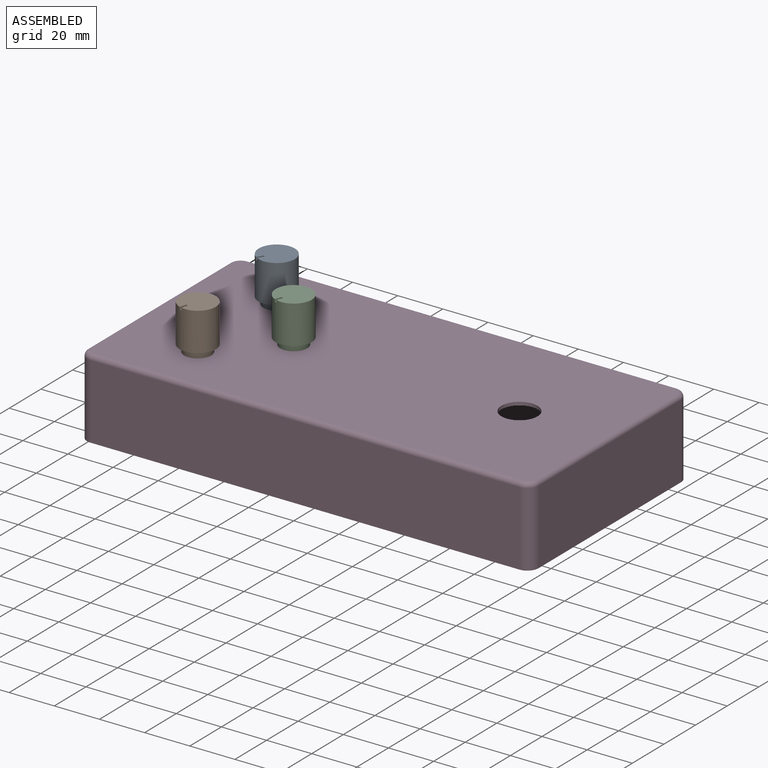
[diagram: assembled view]
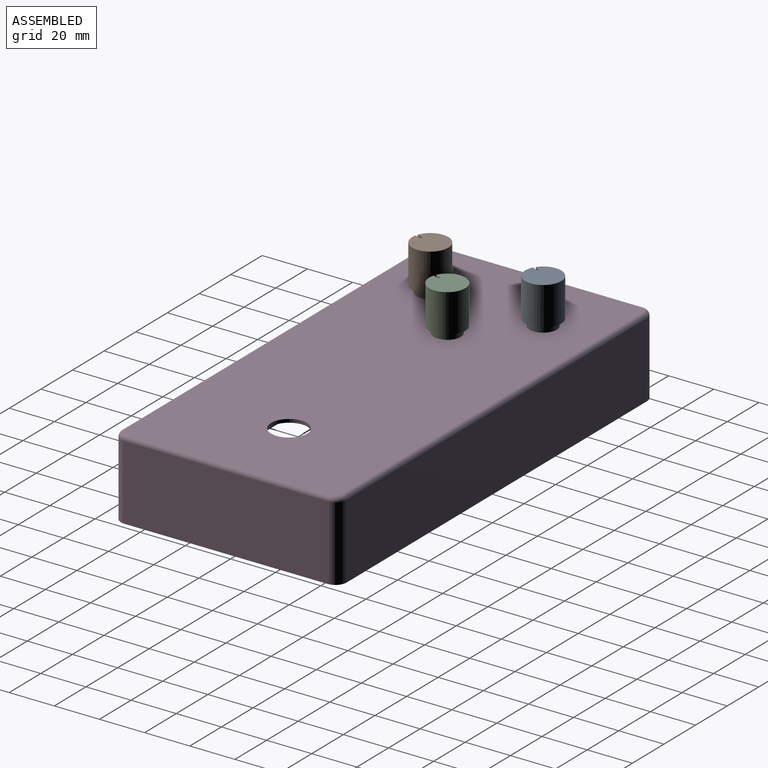
[diagram: assembled view, second angle]
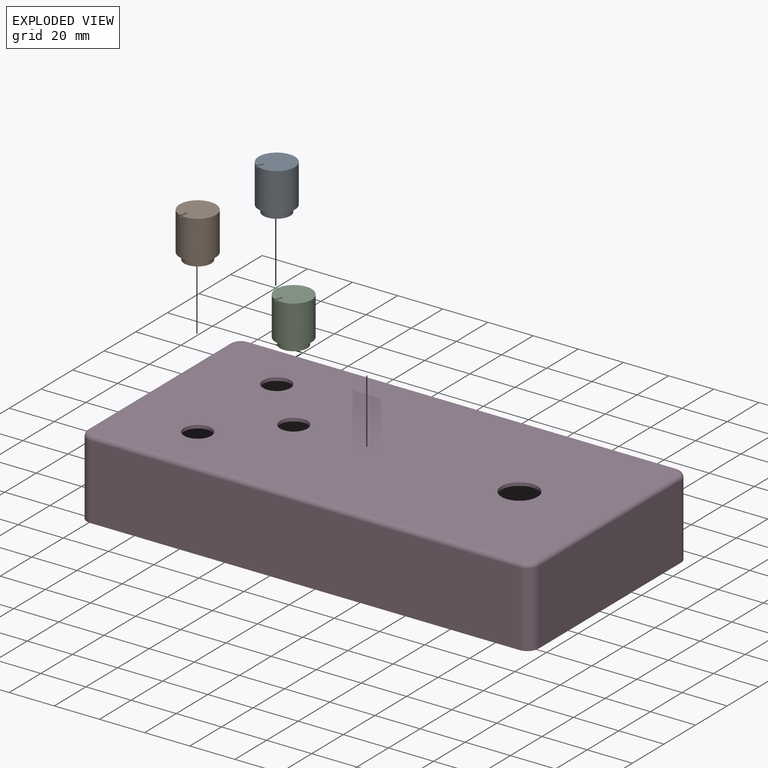
[diagram: exploded view]
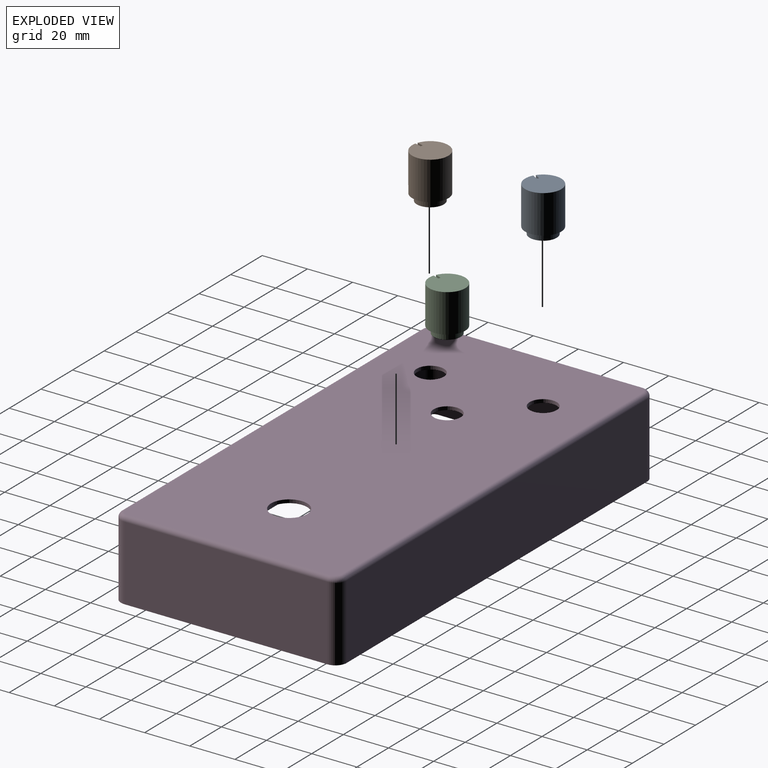
[diagram: exploded view, second angle]
ASSEMBLY  parts=4 mates=3
PART A: 9 faces, bbox 16x16x20 mm
  f0: plane 16x15.98mm, normal (0,0,1), area 198.1mm2, adj f4,f5,f6,f7
  f1: plane 12x12mm, normal (0,0,-1), area 113.1mm2, adj f2
  f2: cylinder r=6mm len=12mm, axis (0,0,1), area 113.1mm2, adj f1,f3
  f3: plane 16x16mm, normal (0,0,-1), area 88mm2, adj f2,f4
  f4: cylinder r=8mm len=17mm, axis (0,0,1), area 853.5mm2, adj f0,f3,f6,f7,f8
  f5: plane 1x1mm, normal (0,-1,0), area 1mm2, adj f0,f6,f7,f8
  f6: plane 2.98x1mm, normal (1,0,0), area 3mm2, adj f0,f4,f5,f8
  f7: plane 2.98x1mm, normal (-1,0,0), area 3mm2, adj f0,f4,f5,f8
  f8: plane 3x1mm, normal (0,0,1), area 3mm2, adj f4,f5,f6,f7
PART B: same geometry as A
PART C: same geometry as A
PART D: 39 faces, bbox 200.8x100.8x35 mm
  f0: plane 200x100mm, normal (0,0,-1), area 880.1mm2, adj f1,f2,f3,f4,f6,f7,f8,f9
  f1: plane 190x33mm, normal (0,1,0), area 6270mm2, adj f0,f6,f9,f10
  f2: plane 90x33mm, normal (-1,0,0), area 2970mm2, adj f0,f6,f7,f13
  f3: plane 190x33mm, normal (0,-1,0), area 6270mm2, adj f0,f7,f8,f17
  f4: plane 90x33mm, normal (1,0,0), area 2970mm2, adj f0,f8,f9,f14
  f5: plane 196x96mm, normal (0,0,1), area 18267.9mm2, adj f10,f11,f12,f13,f14,f15,f16,f17
  f6: cylinder r=5mm len=33mm, axis (0,0,1), area 259.2mm2, adj f0,f1,f2,f11
  f7: cylinder r=5mm len=33mm, axis (0,0,-1), area 259.2mm2, adj f0,f2,f3,f15
  f8: cylinder r=5mm len=33mm, axis (0,0,1), area 259.2mm2, adj f0,f3,f4,f16
  f9: cylinder r=5mm len=33mm, axis (0,0,-1), area 259.2mm2, adj f0,f1,f4,f12
  f10: cylinder r=2mm len=190mm, axis (1,0,0), area 596.9mm2, adj f1,f5,f11,f12
  f11: torus R=3mm, axis (0,0,1), area 21.1mm2, adj f5,f6,f10,f13
  f12: torus R=3mm, axis (0,0,1), area 21.1mm2, adj f5,f9,f10,f14
  f13: cylinder r=2mm len=90mm, axis (0,1,0), area 282.7mm2, adj f2,f5,f11,f15
  f14: cylinder r=2mm len=90mm, axis (0,-1,0), area 282.7mm2, adj f4,f5,f12,f16
  f15: torus R=3mm, axis (0,0,1), area 21.1mm2, adj f5,f7,f13,f17
  f16: torus R=3mm, axis (0,0,1), area 21.1mm2, adj f5,f8,f14,f17
  f17: cylinder r=2mm len=190mm, axis (-1,0,0), area 596.9mm2, adj f3,f5,f15,f16
  f18: plane 190x33mm, normal (0,-1,0), area 6270mm2, adj f0,f23,f26,f27
  f19: plane 90x33mm, normal (1,0,0), area 2970mm2, adj f0,f23,f24,f30
  f20: plane 190x33mm, normal (0,1,0), area 6270mm2, adj f0,f24,f25,f34
  f21: plane 90x33mm, normal (-1,0,0), area 2970mm2, adj f0,f25,f26,f31
  f22: plane 196x96mm, normal (0,0,-1), area 18267.9mm2, adj f27,f28,f29,f30,f31,f32,f33,f34
  f23: cylinder r=3.5mm len=33mm, axis (0,0,1), area 181.4mm2, adj f0,f18,f19,f28
  f24: cylinder r=3.5mm len=33mm, axis (0,0,-1), area 181.4mm2, adj f0,f19,f20,f32
  f25: cylinder r=3.5mm len=33mm, axis (0,0,1), area 181.4mm2, adj f0,f20,f21,f33
  f26: cylinder r=3.5mm len=33mm, axis (0,0,-1), area 181.4mm2, adj f0,f18,f21,f29
  f27: cylinder r=0.5mm len=190mm, axis (1,0,0), area 149.2mm2, adj f18,f22,f28,f29
  f28: torus R=3mm, axis (0,0,1), area 4.1mm2, adj f22,f23,f27,f30
  f29: torus R=3mm, axis (0,0,1), area 4.1mm2, adj f22,f26,f27,f31
  f30: cylinder r=0.5mm len=90mm, axis (0,1,0), area 70.7mm2, adj f19,f22,f28,f32
  f31: cylinder r=0.5mm len=90mm, axis (0,-1,0), area 70.7mm2, adj f21,f22,f29,f33
  f32: torus R=3mm, axis (0,0,1), area 4.1mm2, adj f22,f24,f30,f34
  f33: torus R=3mm, axis (0,0,1), area 4.1mm2, adj f22,f25,f31,f34
  f34: cylinder r=0.5mm len=190mm, axis (-1,0,0), area 149.2mm2, adj f20,f22,f32,f33
  f35: cylinder r=6mm len=12mm, axis (0,0,1), area 56.5mm2, adj f5,f22
  f36: cylinder r=6mm len=12mm, axis (0,0,1), area 56.5mm2, adj f5,f22
  f37: cylinder r=6mm len=12mm, axis (0,0,1), area 56.5mm2, adj f5,f22
  f38: cylinder r=8mm len=16mm, axis (0,0,1), area 75.4mm2, adj f5,f22
PLACE A rot(axis=(0,0,-1),32deg) t=(3.38,11.81,0)mm
PLACE B rot(axis=(0,0,-1),16.3deg) t=(4.41,-19.28,0)mm
PLACE C rot(axis=(0,0,-1),20.7deg) t=(29.64,0.35,0)mm
PLACE D at identity fixed
MATE revolute C.f2 <-> D.f36  axis (0,0,-1) through (-40,0,35)mm
MATE revolute A.f2 <-> D.f35  axis (0,0,-1) through (-65,25,35)mm
MATE revolute B.f2 <-> D.f37  axis (0,0,-1) through (-65,-25,35)mm
